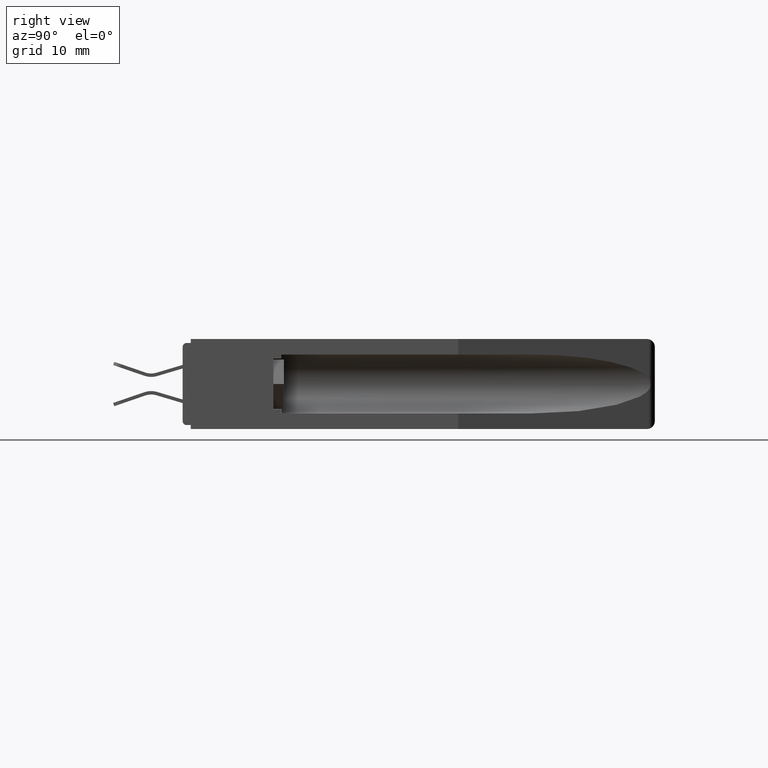
[diagram: clean part render]
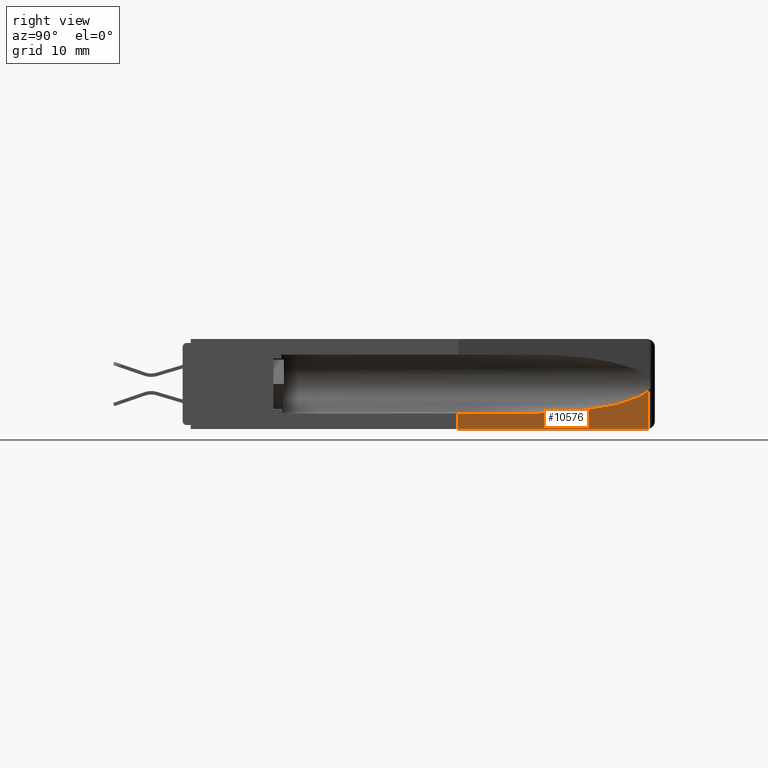
[diagram: same view with one face highlighted and labeled with its STEP entity id]
A machine part, right view. The second image highlights one B-rep face of the part: STEP entity #10576.
In plain terms, the highlighted planar face has unit normal (0.9709, 0.2395, -0).
Its self-contained STEP definition (entity closure, byte-faithful):
#204 = VECTOR ( 'NONE', #6364, 39.37007874015748100 ) ;
#648 = EDGE_CURVE ( 'NONE', #13130, #7153, #10524, .T. ) ;
#1038 = DIRECTION ( 'NONE',  ( 0.2394884713086026000, 0.9708992080078490100, 1.319044556149451100E-017 ) ) ;
#1907 = EDGE_CURVE ( 'NONE', #7153, #13927, #7031, .T. ) ;
#1929 = AXIS2_PLACEMENT_3D ( 'NONE', #2864, #3976, #3928 ) ;
#2195 = CARTESIAN_POINT ( 'NONE',  ( 0.2710000000000000200, 1.550000000000000000, 0.0000000000000000000 ) ) ;
#2458 = CARTESIAN_POINT ( 'NONE',  ( 0.2111379438000715000, 1.307315988378668500, -0.05900000000000001800 ) ) ;
#2643 = EDGE_LOOP ( 'NONE', ( #6579, #8409, #11634, #5378, #13722, #6528 ) ) ;
#2849 = CARTESIAN_POINT ( 'NONE',  ( 0.1550000000000000000, 1.079729729729729500, -0.05900000000000003900 ) ) ;
#2864 = CARTESIAN_POINT ( 'NONE',  ( 0.2710000000000000200, 1.550000000000000000, -0.3430000000000000300 ) ) ;
#3416 = CARTESIAN_POINT ( 'NONE',  ( 0.2653722146876837400, 1.527184654139258400, -0.0008730237597645572600 ) ) ;
#3928 = DIRECTION ( 'NONE',  ( -0.2394884713086026000, -0.9708992080078490100, 0.0000000000000000000 ) ) ;
#3976 = DIRECTION ( 'NONE',  ( -0.9708992080078491200, 0.2394884713086026200, 0.0000000000000000000 ) ) ;
#4025 = PLANE ( 'NONE',  #1929 ) ;
#4893 = EDGE_CURVE ( 'NONE', #10099, #7604, #12057, .T. ) ;
#5100 = CARTESIAN_POINT ( 'NONE',  ( 0.08600000000000016000, 0.8000000000000000400, -0.05900000000000001800 ) ) ;
#5346 = CARTESIAN_POINT ( 'NONE',  ( 0.08600000000000013200, 0.8000000000000000400, -0.3430000000000000300 ) ) ;
#5378 = ORIENTED_EDGE ( 'NONE', *, *, #648, .F. ) ;
#5451 = DIRECTION ( 'NONE',  ( -0.2394884713086026000, -0.9708992080078490100, 0.0000000000000000000 ) ) ;
#5677 = CARTESIAN_POINT ( 'NONE',  ( 0.2641979944228299800, 1.522424301714175400, 1.484456667216083200E-019 ) ) ;
#5835 = CARTESIAN_POINT ( 'NONE',  ( 0.2653722146876837400, 1.527184654139258400, -0.1497233100555697400 ) ) ;
#5865 = CARTESIAN_POINT ( 'NONE',  ( 0.08600000000000013200, 0.8000000000000000400, 0.0000000000000000000 ) ) ;
#5960 = EDGE_CURVE ( 'NONE', #13130, #7604, #12187, .T. ) ;
#6227 = CARTESIAN_POINT ( 'NONE',  ( 0.2636000000000000600, 1.520000000000000200, 0.0000000000000000000 ) ) ;
#6364 = DIRECTION ( 'NONE',  ( -0.0000000000000000000, -0.0000000000000000000, -1.000000000000000000 ) ) ;
#6528 = ORIENTED_EDGE ( 'NONE', *, *, #4893, .F. ) ;
#6540 = VERTEX_POINT ( 'NONE', #3416 ) ;
#6579 = ORIENTED_EDGE ( 'NONE', *, *, #6990, .T. ) ;
#6984 = VECTOR ( 'NONE', #5451, 39.37007874015748900 ) ;
#6990 = EDGE_CURVE ( 'NONE', #10099, #6540, #10388, .T. ) ;
#7031 =( BOUNDED_CURVE ( )  B_SPLINE_CURVE ( 3, ( #11017, #2458, #7861, #11112 ),
 .UNSPECIFIED., .F., .F. ) 
 B_SPLINE_CURVE_WITH_KNOTS ( ( 4, 4 ),
 ( 4.712388980384689700, 6.088385046520238900 ),
 .UNSPECIFIED. ) 
 CURVE ( )  GEOMETRIC_REPRESENTATION_ITEM ( )  RATIONAL_B_SPLINE_CURVE ( ( 1.000000000000000000, 0.8483458633392274600, 0.8483458633392274600, 1.000000000000000000 ) ) 
 REPRESENTATION_ITEM ( '' )  );
#7153 = VERTEX_POINT ( 'NONE', #2849 ) ;
#7604 = VERTEX_POINT ( 'NONE', #5865 ) ;
#7861 = CARTESIAN_POINT ( 'NONE',  ( 0.2545055604987769800, 1.483130650670717600, -0.09464713952022194000 ) ) ;
#8409 = ORIENTED_EDGE ( 'NONE', *, *, #10109, .T. ) ;
#9325 = VECTOR ( 'NONE', #12862, 39.37007874015748100 ) ;
#10099 = VERTEX_POINT ( 'NONE', #6227 ) ;
#10109 = EDGE_CURVE ( 'NONE', #6540, #13927, #13017, .T. ) ;
#10388 =( BOUNDED_CURVE ( )  B_SPLINE_CURVE ( 3, ( #11086, #5677, #10994, #12003 ),
 .UNSPECIFIED., .F., .F. ) 
 B_SPLINE_CURVE_WITH_KNOTS ( ( 4, 4 ),
 ( 1.570796326794896600, 1.812635282813201300 ),
 .UNSPECIFIED. ) 
 CURVE ( )  GEOMETRIC_REPRESENTATION_ITEM ( )  RATIONAL_B_SPLINE_CURVE ( ( 1.000000000000000000, 0.9951320956316031000, 0.9951320956316031000, 1.000000000000000000 ) ) 
 REPRESENTATION_ITEM ( '' )  );
#10524 = LINE ( 'NONE', #12742, #12529 ) ;
#10576 = ADVANCED_FACE ( 'NONE', ( #10810 ), #4025, .T. ) ;
#10810 = FACE_OUTER_BOUND ( 'NONE', #2643, .T. ) ;
#10994 = CARTESIAN_POINT ( 'NONE',  ( 0.2647916223761651000, 1.524830901524993200, -0.0002924314482458906100 ) ) ;
#11017 = CARTESIAN_POINT ( 'NONE',  ( 0.1550000000000000000, 1.079729729729729500, -0.05900000000000003900 ) ) ;
#11086 = CARTESIAN_POINT ( 'NONE',  ( 0.2636000000000000600, 1.520000000000000200, 0.0000000000000000000 ) ) ;
#11112 = CARTESIAN_POINT ( 'NONE',  ( 0.2653722146876837400, 1.527184654139258400, -0.1497233100555697400 ) ) ;
#11634 = ORIENTED_EDGE ( 'NONE', *, *, #1907, .F. ) ;
#12003 = CARTESIAN_POINT ( 'NONE',  ( 0.2653722146876837400, 1.527184654139258400, -0.0008730237597645572600 ) ) ;
#12057 = LINE ( 'NONE', #2195, #6984 ) ;
#12187 = LINE ( 'NONE', #5346, #9325 ) ;
#12529 = VECTOR ( 'NONE', #1038, 39.37007874015748900 ) ;
#12742 = CARTESIAN_POINT ( 'NONE',  ( 0.2710000000000000200, 1.550000000000000000, -0.05900000000000000400 ) ) ;
#12862 = DIRECTION ( 'NONE',  ( 0.0000000000000000000, 0.0000000000000000000, 1.000000000000000000 ) ) ;
#13017 = LINE ( 'NONE', #13801, #204 ) ;
#13130 = VERTEX_POINT ( 'NONE', #5100 ) ;
#13722 = ORIENTED_EDGE ( 'NONE', *, *, #5960, .T. ) ;
#13801 = CARTESIAN_POINT ( 'NONE',  ( 0.2653722146876837400, 1.527184654139258400, -0.3430000000000000300 ) ) ;
#13927 = VERTEX_POINT ( 'NONE', #5835 ) ;